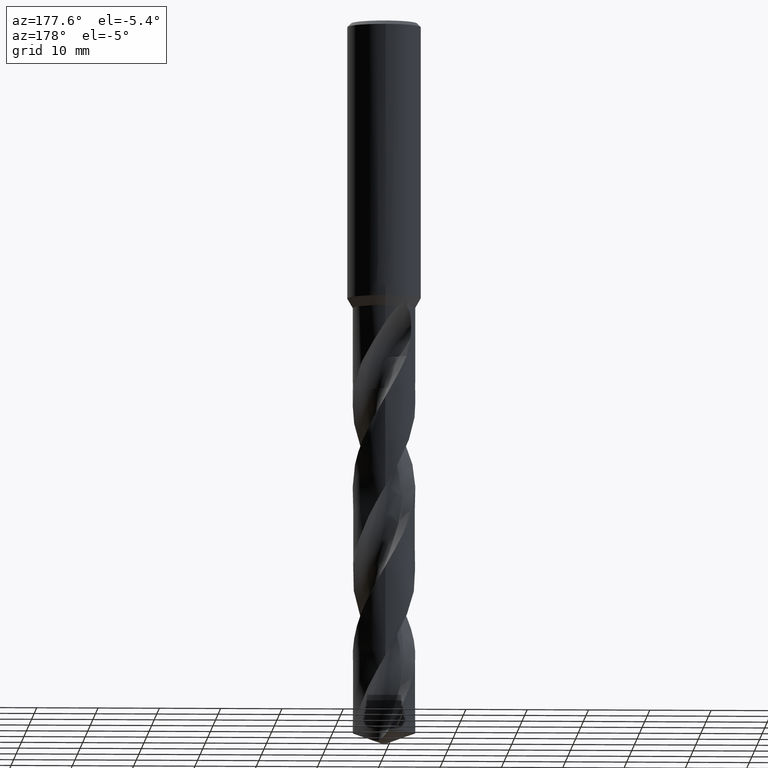
[diagram: clean part render]
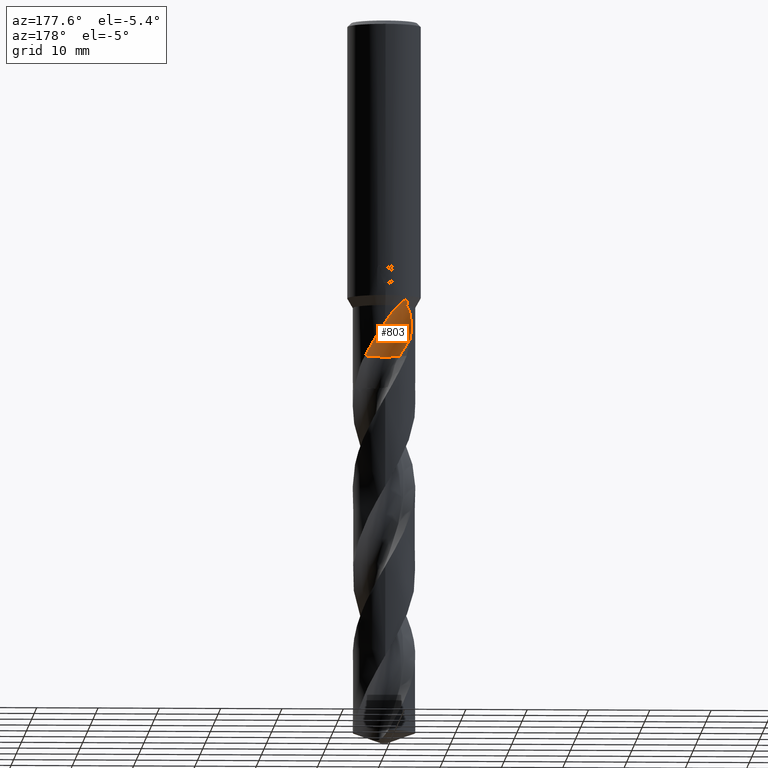
[diagram: same view with one face highlighted and labeled with its STEP entity id]
A machine part, auxiliary view. The second image highlights one B-rep face of the part: STEP entity #803.
In plain terms, the highlighted face is a SurfaceOfRevolution surface.
Its self-contained STEP definition (entity closure, byte-faithful):
#411=EDGE_CURVE('',#511,#571,#977,.T.);
#451=VERTEX_POINT('',#1021);
#473=EDGE_CURVE('',#725,#827,#1044,.T.);
#511=VERTEX_POINT('',#1084);
#543=VERTEX_POINT('',#1118);
#555=EDGE_CURVE('',#511,#451,#1130,.T.);
#571=VERTEX_POINT('',#1147);
#601=EDGE_CURVE('',#827,#619,#1178,.T.);
#607=EDGE_CURVE('',#451,#543,#1184,.T.);
#619=VERTEX_POINT('',#1197);
#623=EDGE_CURVE('',#571,#725,#1201,.T.);
#693=EDGE_CURVE('',#543,#619,#1278,.T.);
#725=VERTEX_POINT('',#1315);
#803=ADVANCED_FACE('',(#1404),#1405,.F.);
#827=VERTEX_POINT('',#1431);
#977=B_SPLINE_CURVE_WITH_KNOTS('',3,(#3521,#3522,#3523,#3524,#3525,#3526,#3527,#3528,#3529,#3530,#3531,#3532,#3533,#3534,#3535,#3536),.UNSPECIFIED.,.F.,.F.,(4,2,2,2,2,2,2,4),(0.0,2.49871265368349,3.86306852552482,5.09883152037145,6.53449058635116,8.25904585773522,9.14442875931307,9.85916554693078),.UNSPECIFIED.);
#1021=CARTESIAN_POINT('',(-0.551994930176642,1.57509240623602,-54.7162));
#1044=B_SPLINE_CURVE_WITH_KNOTS('',3,(#3834,#3835,#3836,#3837,#3838,#3839,#3840,#3841,#3842,#3843,#3844,#3845,#3846,#3847,#3848,#3849,#3850,#3851),.UNSPECIFIED.,.F.,.F.,(4,2,2,2,2,2,2,2,4),(0.0,0.672300659051128,1.13350044149954,1.33627195094837,1.47795726952792,1.61083786459267,1.78314165799322,2.08683854850485,2.65528078499425),.UNSPECIFIED.);
#1084=CARTESIAN_POINT('',(3.24979370895934,3.93050134832801,-54.7162));
#1118=CARTESIAN_POINT('',(-2.40416305596356,2.52583694403645,-54.7162));
#1130=CIRCLE('',#4212,3.4);
#1147=CARTESIAN_POINT('',(-1.51221091417386E-012,5.09999999999999,-49.2950170409707));
#1178=B_SPLINE_CURVE_WITH_KNOTS('',3,(#4656,#4657,#4658,#4659,#4660,#4661,#4662,#4663,#4664,#4665),.UNSPECIFIED.,.F.,.F.,(4,2,2,2,4),(0.0,0.643960085196021,1.60714124775783,2.95063636342976,4.3619325490847),.UNSPECIFIED.);
#1184=CIRCLE('',#4678,3.4);
#1197=CARTESIAN_POINT('',(-4.1495750328572,2.96496661814061,-51.9235408369702));
#1201=B_SPLINE_CURVE_WITH_KNOTS('',3,(#4740,#4741,#4742,#4743,#4744,#4745,#4746,#4747,#4748,#4749,#4750,#4751,#4752,#4753,#4754,#4755),.UNSPECIFIED.,.F.,.F.,(4,2,2,2,2,2,2,4),(0.0,2.49871265368349,3.86306852552482,5.09883152037145,6.53449058635116,8.25904585773522,9.14442875931307,9.85916554693078),.UNSPECIFIED.);
#1278=CIRCLE('',#6432,22.1608254907705);
#1315=CARTESIAN_POINT('',(-2.27475090764655,4.56459289621333,-46.558845726812));
#1404=FACE_OUTER_BOUND('',#9401,.T.);
#1405=SURFACE_OF_REVOLUTION('',#9402,#9403);
#1431=CARTESIAN_POINT('',(-3.55601984844784,3.65577937483172,-46.558845726812));
#3521=CARTESIAN_POINT('',(3.24979370895934,3.93050134832801,-54.7162));
#3522=CARTESIAN_POINT('',(2.91337936961071,4.20865344820808,-54.0068437863814));
#3523=CARTESIAN_POINT('',(2.52657918675046,4.45591132423751,-53.3454948110928));
#3524=CARTESIAN_POINT('',(1.85211502567177,4.75897775575328,-52.2406662351026));
#3525=CARTESIAN_POINT('',(1.6094110894259,4.84615853252497,-51.8519503331035));
#3526=CARTESIAN_POINT('',(1.13956695854068,4.97645319592027,-51.0994972420555));
#3527=CARTESIAN_POINT('',(0.914524597886065,5.02248598896408,-50.7392673258812));
#3528=CARTESIAN_POINT('',(0.427402711939857,5.0889226380666,-49.9628763495345));
#3529=CARTESIAN_POINT('',(0.161254247307499,5.10452010935033,-49.5406380795033));
#3530=CARTESIAN_POINT('',(-0.429793475701438,5.09208753194541,-48.6373309534817));
#3531=CARTESIAN_POINT('',(-0.780225106218335,5.05363409028635,-48.1233392927775));
#3532=CARTESIAN_POINT('',(-1.32808361526234,4.92773369199497,-47.4362184342987));
#3533=CARTESIAN_POINT('',(-1.52837481373304,4.87063623651398,-47.2048510929327));
#3534=CARTESIAN_POINT('',(-1.90462697242847,4.73437911837781,-46.8358538615158));
#3535=CARTESIAN_POINT('',(-2.0863527850865,4.65848052431876,-46.6803704321564));
#3536=CARTESIAN_POINT('',(-2.27475090764656,4.56459289621332,-46.558845726812));
#3834=CARTESIAN_POINT('',(-2.27475090764656,4.56459289621332,-46.558845726812));
#3835=CARTESIAN_POINT('',(-2.41142346506818,4.60763179908496,-46.3865402615774));
#3836=CARTESIAN_POINT('',(-2.56735759973555,4.64428222957888,-46.2036958185621));
#3837=CARTESIAN_POINT('',(-2.83517768973948,4.66445409288293,-45.9391650362718));
#3838=CARTESIAN_POINT('',(-2.96573467230308,4.66250823503064,-45.8237635628502));
#3839=CARTESIAN_POINT('',(-3.15066057388492,4.61590613936794,-45.7129079189711));
#3840=CARTESIAN_POINT('',(-3.210180958509,4.59492244664867,-45.6844212720661));
#3841=CARTESIAN_POINT('',(-3.30858818333481,4.54236466646279,-45.6592021670035));
#3842=CARTESIAN_POINT('',(-3.34702636577271,4.51655975477236,-45.6558188277265));
#3843=CARTESIAN_POINT('',(-3.4158002602251,4.45756967599645,-45.6656861823483));
#3844=CARTESIAN_POINT('',(-3.44439831621866,4.42674053546302,-45.677618397114));
#3845=CARTESIAN_POINT('',(-3.50055055297928,4.35269923375654,-45.7180194973051));
#3846=CARTESIAN_POINT('',(-3.52432956837362,4.30978976215166,-45.7496542531382));
#3847=CARTESIAN_POINT('',(-3.57387043464364,4.19555814562606,-45.8471119206771));
#3848=CARTESIAN_POINT('',(-3.58947312017985,4.12263781404995,-45.9247653357393));
#3849=CARTESIAN_POINT('',(-3.60945520099221,3.93493696234944,-46.1450944466467));
#3850=CARTESIAN_POINT('',(-3.59649344187394,3.79974481271062,-46.3312234201769));
#3851=CARTESIAN_POINT('',(-3.55601984844785,3.65577937483171,-46.558845726812));
#4212=AXIS2_PLACEMENT_3D('',#10080,#10081,#10082);
#4656=CARTESIAN_POINT('',(-3.55601984844785,3.65577937483172,-46.558845726812));
#4657=CARTESIAN_POINT('',(-3.68252131160129,3.53272990501735,-46.6810434088739));
#4658=CARTESIAN_POINT('',(-3.78538602810325,3.42017405881072,-46.8386167637586));
#4659=CARTESIAN_POINT('',(-3.99570442707782,3.1751837341664,-47.2675244205172));
#4660=CARTESIAN_POINT('',(-4.09474051917982,3.04294120096241,-47.5867757537063));
#4661=CARTESIAN_POINT('',(-4.27138819256819,2.79233478896599,-48.4638104716798));
#4662=CARTESIAN_POINT('',(-4.32928071297353,2.69579971593003,-49.0831729199897));
#4663=CARTESIAN_POINT('',(-4.33226611864642,2.69099956592656,-50.5032589533513));
#4664=CARTESIAN_POINT('',(-4.27279607535161,2.79251443661214,-51.2226890201039));
#4665=CARTESIAN_POINT('',(-4.1495750328572,2.96496661814061,-51.9235408369702));
#4678=AXIS2_PLACEMENT_3D('',#10110,#10111,#10112);
#4740=CARTESIAN_POINT('',(3.24979370895934,3.93050134832801,-54.7162));
#4741=CARTESIAN_POINT('',(2.91337936961071,4.20865344820808,-54.0068437863814));
#4742=CARTESIAN_POINT('',(2.52657918675046,4.45591132423751,-53.3454948110928));
#4743=CARTESIAN_POINT('',(1.85211502567177,4.75897775575328,-52.2406662351026));
#4744=CARTESIAN_POINT('',(1.6094110894259,4.84615853252497,-51.8519503331035));
#4745=CARTESIAN_POINT('',(1.13956695854068,4.97645319592027,-51.0994972420555));
#4746=CARTESIAN_POINT('',(0.914524597886065,5.02248598896408,-50.7392673258812));
#4747=CARTESIAN_POINT('',(0.427402711939857,5.0889226380666,-49.9628763495345));
#4748=CARTESIAN_POINT('',(0.161254247307499,5.10452010935033,-49.5406380795033));
#4749=CARTESIAN_POINT('',(-0.429793475701438,5.09208753194541,-48.6373309534817));
#4750=CARTESIAN_POINT('',(-0.780225106218335,5.05363409028635,-48.1233392927775));
#4751=CARTESIAN_POINT('',(-1.32808361526234,4.92773369199497,-47.4362184342987));
#4752=CARTESIAN_POINT('',(-1.52837481373304,4.87063623651398,-47.2048510929327));
#4753=CARTESIAN_POINT('',(-1.90462697242847,4.73437911837781,-46.8358538615158));
#4754=CARTESIAN_POINT('',(-2.0863527850865,4.65848052431876,-46.6803704321564));
#4755=CARTESIAN_POINT('',(-2.27475090764656,4.56459289621332,-46.558845726812));
#6432=AXIS2_PLACEMENT_3D('',#10218,#10219,#10220);
#9401=EDGE_LOOP('',(#10358,#10359,#10360,#10361,#10362,#10363,#10364));
#9402=(B_SPLINE_CURVE(3,(#10366,#10367,#10368,#10369,#10370,#10371,#10372,#10373,#10374),.UNSPECIFIED.,.F.,.F.)B_SPLINE_CURVE_WITH_KNOTS((4,1,3,1,4),(-2.85637006146496,-2.55358124460426,-2.25079242774355,-1.94800361088285,-1.64521479402214),.UNSPECIFIED.)RATIONAL_B_SPLINE_CURVE((1.09168106761591,1.03056035587197,0.969439644128031,1.03056035587197,1.09168106761591,1.03056035587197,0.969439644128031,1.03056035587197,1.09168106761591))BOUNDED_CURVE()REPRESENTATION_ITEM('')GEOMETRIC_REPRESENTATION_ITEM()CURVE());
#9403=AXIS1_PLACEMENT('',#10381,#10382);
#10080=CARTESIAN_POINT('',(1.84390896763157E-005,4.92998156091032,-54.7162));
#10081=DIRECTION('',(0.0,0.0,-1.0));
#10082=DIRECTION('',(0.707101357904082,0.707112204427419,0.0));
#10110=CARTESIAN_POINT('',(1.84390896763157E-005,4.92998156091032,-54.7162));
#10111=DIRECTION('',(0.0,0.0,-1.0));
#10112=DIRECTION('',(0.707101357904082,0.707112204427419,0.0));
#10218=CARTESIAN_POINT('',(-1.7288363548502,24.65,-55.7967227217814));
#10219=DIRECTION('',(-0.847998304005088,7.2341638399316E-018,-0.52999894000318));
#10220=DIRECTION('',(-0.0535598122533606,-0.994880693138896,0.085695699605377));
#10358=ORIENTED_EDGE('',*,*,#601,.F.);
#10359=ORIENTED_EDGE('',*,*,#473,.F.);
#10360=ORIENTED_EDGE('',*,*,#623,.F.);
#10361=ORIENTED_EDGE('',*,*,#411,.F.);
#10362=ORIENTED_EDGE('',*,*,#555,.T.);
#10363=ORIENTED_EDGE('',*,*,#607,.T.);
#10364=ORIENTED_EDGE('',*,*,#693,.T.);
#10366=CARTESIAN_POINT('',(-2.40416305596356,2.52583694403645,-54.7162));
#10367=CARTESIAN_POINT('',(-1.93325542468798,2.05492208931185,-54.7162));
#10368=CARTESIAN_POINT('',(-0.708757755088474,1.38579695910022,-54.7162));
#10369=CARTESIAN_POINT('',(0.678898771068271,1.53253600690265,-54.7162));
#10370=CARTESIAN_POINT('',(1.29469548078377,1.78612861305951,-54.7162));
#10371=CARTESIAN_POINT('',(1.91049219049927,2.03972121921637,-54.7162));
#10372=CARTESIAN_POINT('',(2.99906464344759,2.912723508685,-54.7162));
#10373=CARTESIAN_POINT('',(3.39726268274515,4.25009455078025,-54.7162));
#10374=CARTESIAN_POINT('',(3.39998992946603,4.91605803305175,-54.7162));
#10381=CARTESIAN_POINT('',(-1.7288363548502,24.65,-55.7967227217814));
#10382=DIRECTION('',(0.847998304005088,-0.0,0.52999894000318));